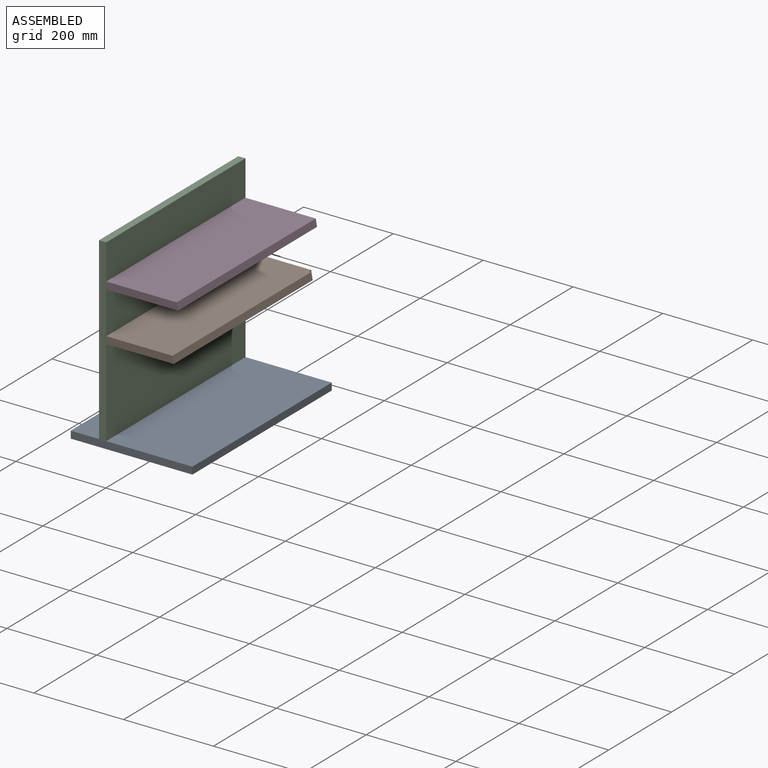
[diagram: assembled view]
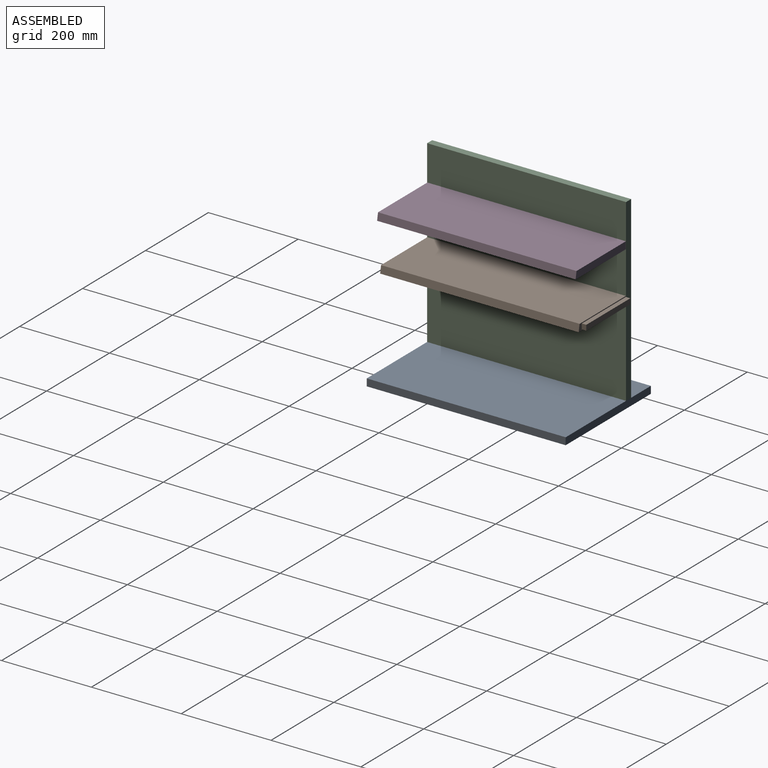
[diagram: assembled view, second angle]
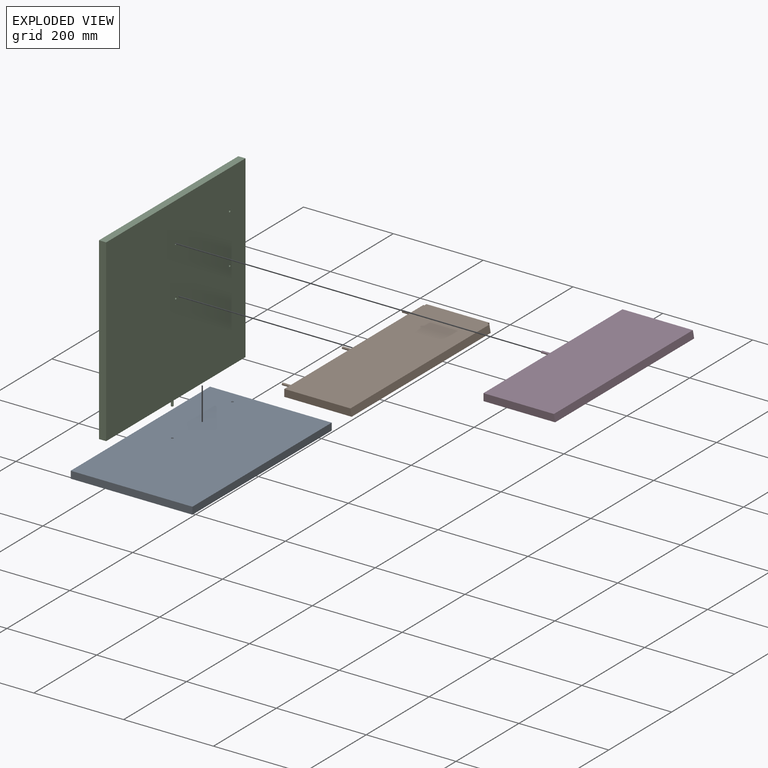
[diagram: exploded view]
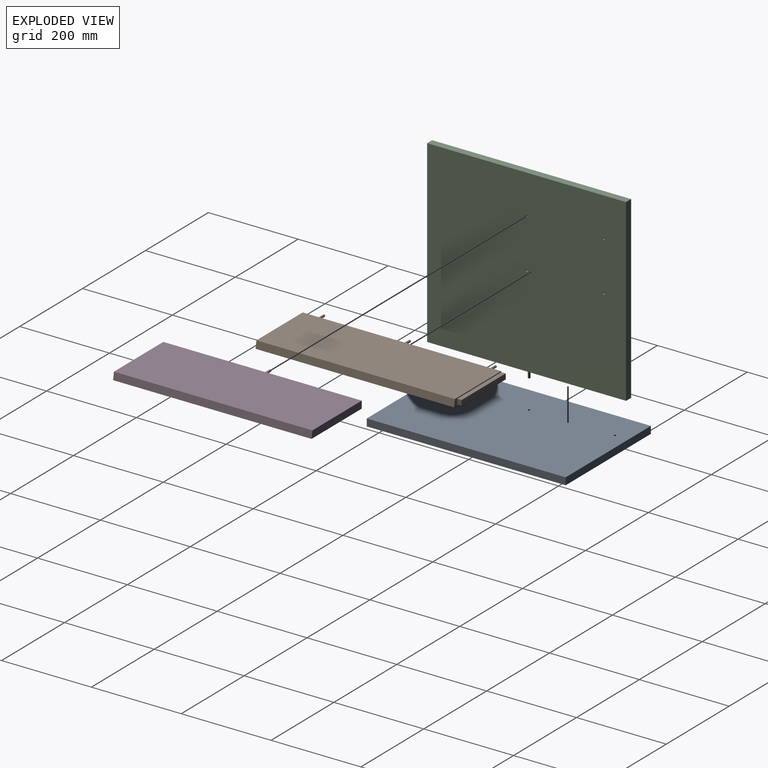
[diagram: exploded view, second angle]
ASSEMBLY  parts=4 mates=3
PART A: 8 faces, bbox 443x271x16 mm
  f0: plane 443x16mm, normal (0,1,0), area 7088mm2, adj f1,f3,f4,f5
  f1: plane 271x16mm, normal (-1,0,0), area 4336mm2, adj f0,f2,f4,f5
  f2: plane 443x16mm, normal (0,-1,0), area 7088mm2, adj f1,f3,f4,f5
  f3: plane 271x16mm, normal (1,0,0), area 4336mm2, adj f0,f2,f4,f5
  f4: plane 443x271mm, normal (0,0,1), area 120013.7mm2, adj f0,f1,f2,f3,f6,f7
  f5: plane 443x271mm, normal (0,0,-1), area 120013.7mm2, adj f0,f1,f2,f3,f6,f7
  f6: cylinder r=2.5mm len=16mm, axis (0,0,-1), area 251.3mm2, adj f4,f5
  f7: cylinder r=2.5mm len=16mm, axis (0,0,-1), area 251.3mm2, adj f4,f5
PART B: 16 faces, bbox 175x452x16 mm
  f0: plane 442x147.18mm, normal (0,0,1), area 65053mm2, adj f1,f3,f4,f5
  f1: plane 452x16mm, normal (-1,0,0), area 7133.1mm2, adj f0,f2,f4,f5,f6,f8,f10,f12
  f2: plane 442x150mm, normal (0,0,-1), area 66300mm2, adj f1,f3,f4,f5
  f3: plane 442x16mm, normal (0.98,0,0.17), area 7181.1mm2, adj f0,f2,f4,f5
  f4: plane 150x16mm, normal (0,-1,0), area 2377.4mm2, adj f0,f1,f2,f3
  f5: plane 150x16mm, normal (0,1,0), area 697.4mm2, adj f0,f1,f2,f3,f12,f13,f14
  f6: cylinder r=2.5mm len=25mm, axis (1,0,0), area 392.7mm2, adj f1,f7
  f7: plane 5x5mm, normal (-1,0,0), area 19.6mm2, adj f6
  f8: cylinder r=2.5mm len=25mm, axis (1,0,0), area 392.7mm2, adj f1,f9
  f9: plane 5x5mm, normal (-1,0,0), area 19.6mm2, adj f8
  f10: cylinder r=2.5mm len=25mm, axis (1,0,0), area 392.7mm2, adj f1,f11
  f11: plane 5x5mm, normal (-1,0,0), area 19.6mm2, adj f10
  f12: plane 140x10mm, normal (0,0,1), area 1400mm2, adj f1,f5,f13,f15
  f13: plane 12x10mm, normal (1,0,0), area 120mm2, adj f5,f12,f14,f15
  f14: plane 140x10mm, normal (0,0,-1), area 1400mm2, adj f1,f5,f13,f15
  f15: plane 140x12mm, normal (0,1,0), area 1680mm2, adj f1,f12,f13,f14
PART C: 12 faces, bbox 16x443x416 mm
  f0: plane 400x16mm, normal (0,1,0), area 6400mm2, adj f1,f6,f8,f9
  f1: plane 443x16mm, normal (0,0,1), area 7088mm2, adj f0,f2,f8,f9
  f2: plane 400x16mm, normal (0,-1,0), area 6400mm2, adj f1,f6,f8,f9
  f3: cylinder r=2.5mm len=16mm, axis (-1,0,0), area 251.3mm2, adj f8,f9
  f4: cylinder r=2.5mm len=16mm, axis (-1,0,0), area 251.3mm2, adj f8,f9
  f5: cylinder r=2.5mm len=16mm, axis (-1,0,0), area 251.3mm2, adj f8,f9
  f6: plane 443x16mm, normal (0,0,-1), area 7068.4mm2, adj f0,f2,f8,f9,f10
  f7: cylinder r=2.5mm len=16mm, axis (-1,0,0), area 251.3mm2, adj f8,f9
  f8: plane 443x400mm, normal (1,0,0), area 177121.5mm2, adj f0,f1,f2,f3,f4,f5,f6,f7
  f9: plane 443x400mm, normal (-1,0,0), area 177121.5mm2, adj f0,f1,f2,f3,f4,f5,f6,f7
  f10: cylinder r=2.5mm len=16mm, axis (0,0,1), area 251.3mm2, adj f6,f11
  f11: plane 5x5mm, normal (0,0,-1), area 19.6mm2, adj f10
PART D: 8 faces, bbox 184.7x442x16.1 mm
  f0: plane 442x16.05mm, normal (0.98,0,0.17), area 7204.7mm2, adj f1,f3,f4,f5
  f1: plane 442x156.87mm, normal (0,0,1), area 69336mm2, adj f0,f2,f4,f5
  f2: plane 442x16.05mm, normal (-1,0,0), area 7075.6mm2, adj f1,f3,f4,f5,f6
  f3: plane 442x159.7mm, normal (0,0,-1), area 70587mm2, adj f0,f2,f4,f5
  f4: plane 159.7x16.05mm, normal (0,-1,0), area 2540.9mm2, adj f0,f1,f2,f3
  f5: plane 159.7x16.05mm, normal (0,1,0), area 2540.9mm2, adj f0,f1,f2,f3
  f6: cylinder r=2.5mm len=25mm, axis (1,0,0), area 392.7mm2, adj f2,f7
  f7: plane 5x5mm, normal (-1,0,0), area 19.6mm2, adj f6
PLACE A rot(axis=(0,0,-1),90deg) t=(49,0,-216)mm
PLACE B t=(82.58,221,5)mm
PLACE C at identity fixed
PLACE D t=(80.59,221,114.97)mm
MATE fastened D.f6 <-> C.f3  axis (1,0,0) through (16,0,113)mm
MATE fastened A.f6 <-> C.f10  axis (0,0,1) through (8,0,-200)mm
MATE fastened B.f8 <-> C.f7  axis (-1,0,0) through (16,0,3)mm
